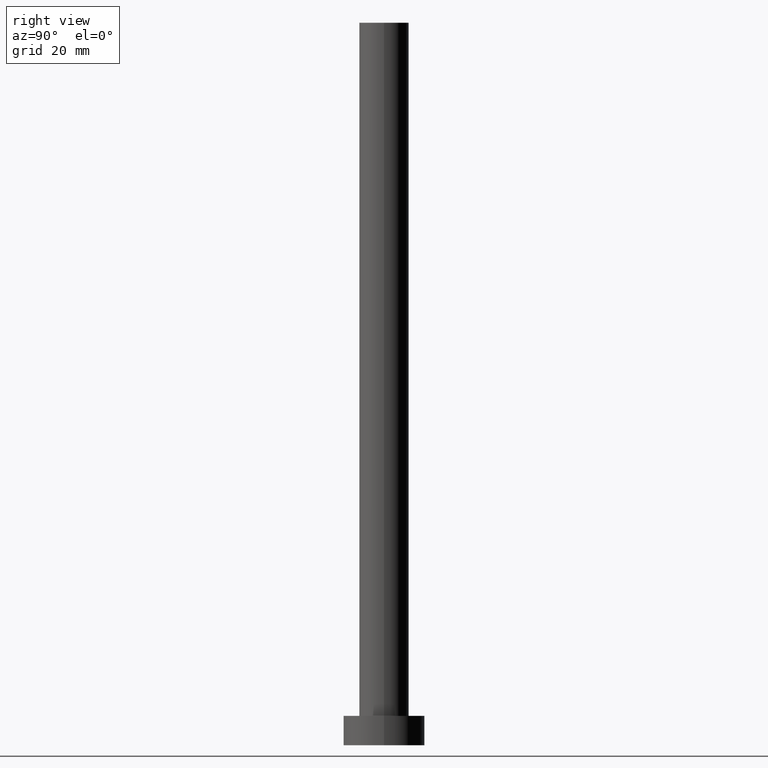
[diagram: clean part render]
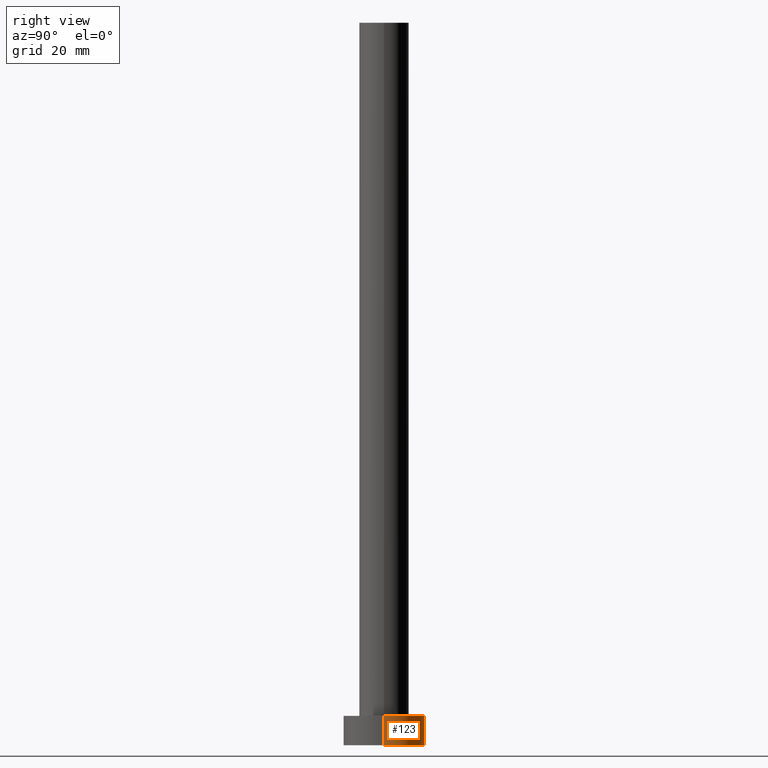
[diagram: same view with one face highlighted and labeled with its STEP entity id]
A machine part, right view. The second image highlights one B-rep face of the part: STEP entity #123.
In plain terms, the highlighted cylindrical surface (partial cylindrical patch) has radius 9 mm, axis along (-0, -0, -1).
Its self-contained STEP definition (entity closure, byte-faithful):
#2 = VERTEX_POINT ( 'NONE', #216 ) ;
#9 = LINE ( 'NONE', #53, #57 ) ;
#10 = DIRECTION ( 'NONE',  ( -0.000000000000000000, -0.000000000000000000, -1.000000000000000000 ) ) ;
#12 = VERTEX_POINT ( 'NONE', #170 ) ;
#14 = EDGE_CURVE ( 'NONE', #2, #70, #133, .T. ) ;
#40 = CYLINDRICAL_SURFACE ( 'NONE', #212, 9.000000000000000000 ) ;
#44 = DIRECTION ( 'NONE',  ( 1.000000000000000000, 0.000000000000000000, 0.000000000000000000 ) ) ;
#53 = CARTESIAN_POINT ( 'NONE',  ( 9.000000000000000000, 1.102182119232617517E-15, 6.500000000000000000 ) ) ;
#54 = EDGE_CURVE ( 'NONE', #167, #12, #9, .T. ) ;
#57 = VECTOR ( 'NONE', #10, 1000.000000000000000 ) ;
#59 = CARTESIAN_POINT ( 'NONE',  ( 0.000000000000000000, 0.000000000000000000, 6.500000000000000000 ) ) ;
#67 = CIRCLE ( 'NONE', #219, 9.000000000000000000 ) ;
#70 = VERTEX_POINT ( 'NONE', #124 ) ;
#80 = ORIENTED_EDGE ( 'NONE', *, *, #54, .T. ) ;
#86 = DIRECTION ( 'NONE',  ( 1.000000000000000000, 0.000000000000000000, 0.000000000000000000 ) ) ;
#119 = DIRECTION ( 'NONE',  ( -0.000000000000000000, -0.000000000000000000, -1.000000000000000000 ) ) ;
#123 = ADVANCED_FACE ( 'NONE', ( #203 ), #40, .T. ) ;
#124 = CARTESIAN_POINT ( 'NONE',  ( -9.000000000000000000, 0.000000000000000000, 0.000000000000000000 ) ) ;
#133 = LINE ( 'NONE', #200, #176 ) ;
#146 = CARTESIAN_POINT ( 'NONE',  ( 0.000000000000000000, 0.000000000000000000, 0.000000000000000000 ) ) ;
#151 = ORIENTED_EDGE ( 'NONE', *, *, #14, .F. ) ;
#167 = VERTEX_POINT ( 'NONE', #191 ) ;
#170 = CARTESIAN_POINT ( 'NONE',  ( 9.000000000000000000, 1.102182119232617517E-15, 0.000000000000000000 ) ) ;
#172 = DIRECTION ( 'NONE',  ( -1.000000000000000000, 0.000000000000000000, 0.000000000000000000 ) ) ;
#176 = VECTOR ( 'NONE', #189, 1000.000000000000000 ) ;
#179 = CARTESIAN_POINT ( 'NONE',  ( 0.000000000000000000, 0.000000000000000000, 6.500000000000000000 ) ) ;
#189 = DIRECTION ( 'NONE',  ( -0.000000000000000000, -0.000000000000000000, -1.000000000000000000 ) ) ;
#191 = CARTESIAN_POINT ( 'NONE',  ( 9.000000000000000000, 1.102182119232617517E-15, 6.500000000000000000 ) ) ;
#200 = CARTESIAN_POINT ( 'NONE',  ( -9.000000000000000000, 0.000000000000000000, 6.500000000000000000 ) ) ;
#203 = FACE_OUTER_BOUND ( 'NONE', #232, .T. ) ;
#204 = CIRCLE ( 'NONE', #236, 9.000000000000000000 ) ;
#209 = ORIENTED_EDGE ( 'NONE', *, *, #215, .F. ) ;
#212 = AXIS2_PLACEMENT_3D ( 'NONE', #59, #119, #172 ) ;
#215 = EDGE_CURVE ( 'NONE', #167, #2, #67, .T. ) ;
#216 = CARTESIAN_POINT ( 'NONE',  ( -9.000000000000000000, 0.000000000000000000, 6.500000000000000000 ) ) ;
#219 = AXIS2_PLACEMENT_3D ( 'NONE', #179, #234, #44 ) ;
#232 = EDGE_LOOP ( 'NONE', ( #209, #80, #240, #151 ) ) ;
#233 = EDGE_CURVE ( 'NONE', #12, #70, #204, .T. ) ;
#234 = DIRECTION ( 'NONE',  ( 0.000000000000000000, 0.000000000000000000, 1.000000000000000000 ) ) ;
#236 = AXIS2_PLACEMENT_3D ( 'NONE', #146, #254, #86 ) ;
#240 = ORIENTED_EDGE ( 'NONE', *, *, #233, .T. ) ;
#254 = DIRECTION ( 'NONE',  ( 0.000000000000000000, 0.000000000000000000, 1.000000000000000000 ) ) ;